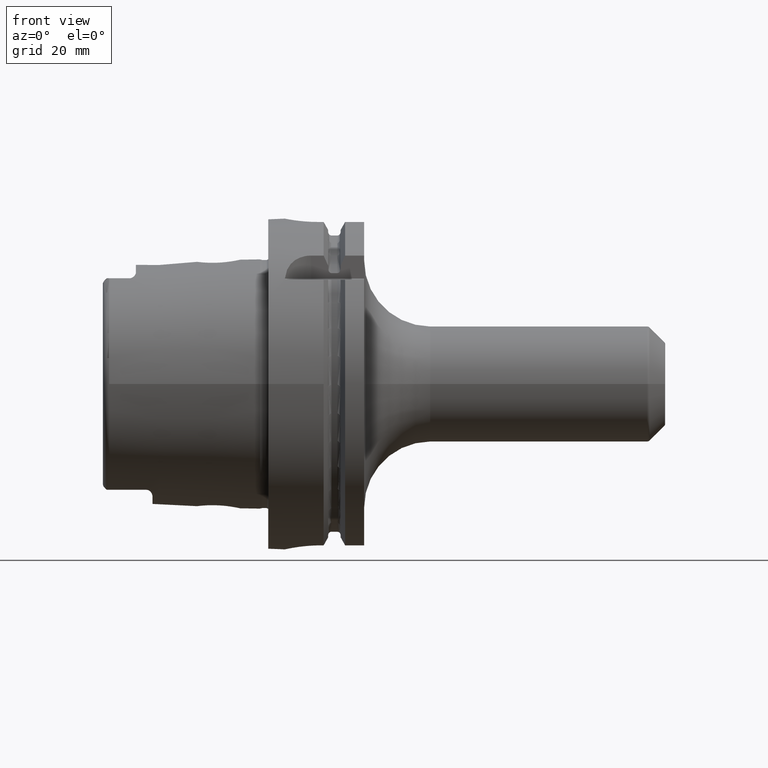
[diagram: clean part render]
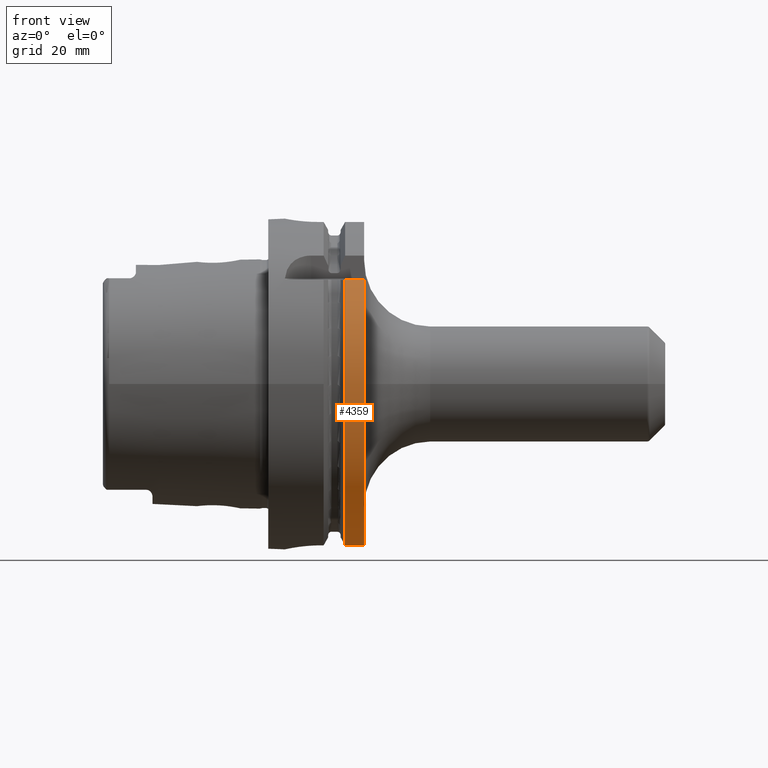
[diagram: same view with one face highlighted and labeled with its STEP entity id]
A machine part, front view. The second image highlights one B-rep face of the part: STEP entity #4359.
In plain terms, the highlighted cylindrical surface (partial cylindrical patch) has radius 50 mm, axis along (1, 0, 0).
Its self-contained STEP definition (entity closure, byte-faithful):
#1123=DIRECTION('',(1.E0,0.E0,0.E0));
#1124=VECTOR('',#1123,5.752404735808E0);
#1125=CARTESIAN_POINT('',(2.324759526419E1,-3.882975663071E1,3.15E1));
#1126=LINE('',#1125,#1124);
#1127=CARTESIAN_POINT('',(2.9E1,0.E0,0.E0));
#1128=DIRECTION('',(1.E0,0.E0,0.E0));
#1129=DIRECTION('',(0.E0,-7.765951326142E-1,6.3E-1));
#1130=AXIS2_PLACEMENT_3D('',#1127,#1128,#1129);
#1132=DIRECTION('',(1.E0,0.E0,0.E0));
#1133=VECTOR('',#1132,5.752404735808E0);
#1134=CARTESIAN_POINT('',(2.324759526419E1,-1.1E1,-4.877499359303E1));
#1135=LINE('',#1134,#1133);
#1677=CARTESIAN_POINT('',(2.324759526419E1,0.E0,0.E0));
#1678=DIRECTION('',(1.E0,0.E0,0.E0));
#1679=DIRECTION('',(0.E0,-7.765951326142E-1,6.3E-1));
#1680=AXIS2_PLACEMENT_3D('',#1677,#1678,#1679);
#3044=CARTESIAN_POINT('',(2.324759526419E1,-1.1E1,-4.877499359303E1));
#3045=CARTESIAN_POINT('',(2.9E1,-1.1E1,-4.877499359303E1));
#3046=VERTEX_POINT('',#3044);
#3047=VERTEX_POINT('',#3045);
#3094=CARTESIAN_POINT('',(2.324759526419E1,-3.882975663071E1,3.15E1));
#3095=CARTESIAN_POINT('',(2.9E1,-3.882975663071E1,3.15E1));
#3096=VERTEX_POINT('',#3094);
#3097=VERTEX_POINT('',#3095);
#4346=CARTESIAN_POINT('',(-5.395E1,0.E0,0.E0));
#4347=DIRECTION('',(1.E0,0.E0,0.E0));
#4348=DIRECTION('',(0.E0,-1.E0,0.E0));
#4349=AXIS2_PLACEMENT_3D('',#4346,#4347,#4348);
#4350=CYLINDRICAL_SURFACE('',#4349,5.E1);
#4351=ORIENTED_EDGE('',*,*,#4310,.T.);
#4352=ORIENTED_EDGE('',*,*,#4292,.T.);
#4354=ORIENTED_EDGE('',*,*,#4353,.F.);
#4356=ORIENTED_EDGE('',*,*,#4355,.F.);
#4357=EDGE_LOOP('',(#4351,#4352,#4354,#4356));
#4358=FACE_OUTER_BOUND('',#4357,.F.);
#4359=ADVANCED_FACE('',(#4358),#4350,.T.);
#1131=CIRCLE('',#1130,5.E1);
#1681=CIRCLE('',#1680,5.E1);
#4292=EDGE_CURVE('',#3097,#3047,#1131,.T.);
#4310=EDGE_CURVE('',#3096,#3097,#1126,.T.);
#4353=EDGE_CURVE('',#3046,#3047,#1135,.T.);
#4355=EDGE_CURVE('',#3096,#3046,#1681,.T.);